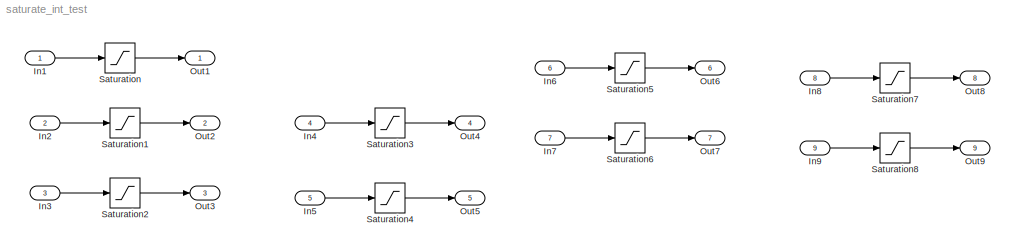
MODEL saturate_int_test
KIND model
BLOCK [Inport] In1
  IconDisplay = Port number
  OutDataTypeStr = double
  SID = 1
BLOCK [Inport] In2
  IconDisplay = Port number
  OutDataTypeStr = double
  Port = 2
  PortDimensions = 3
  SID = 2
BLOCK [Inport] In3
  IconDisplay = Port number
  OutDataTypeStr = double
  Port = 3
  PortDimensions = [2 3]
  SID = 3
BLOCK [Inport] In4
  IconDisplay = Port number
  OutDataTypeStr = double
  Port = 4
  PortDimensions = 3
  SID = 4
BLOCK [Inport] In5
  IconDisplay = Port number
  OutDataTypeStr = double
  Port = 5
  PortDimensions = [2 3]
  SID = 5
BLOCK [Inport] In6
  IconDisplay = Port number
  OutDataTypeStr = double
  Port = 6
  SID = 6
BLOCK [Inport] In7
  IconDisplay = Port number
  OutDataTypeStr = double
  Port = 7
  SID = 7
BLOCK [Inport] In8
  IconDisplay = Port number
  OutDataTypeStr = double
  Port = 8
  SID = 8
BLOCK [Inport] In9
  IconDisplay = Port number
  OutDataTypeStr = double
  Port = 9
  SID = 9
BLOCK [Outport] Out1
  IconDisplay = Port number
  SID = 19
BLOCK [Outport] Out2
  IconDisplay = Port number
  Port = 2
  SID = 20
BLOCK [Outport] Out3
  IconDisplay = Port number
  Port = 3
  SID = 21
BLOCK [Outport] Out4
  IconDisplay = Port number
  Port = 4
  SID = 22
BLOCK [Outport] Out5
  IconDisplay = Port number
  Port = 5
  SID = 23
BLOCK [Outport] Out6
  IconDisplay = Port number
  Port = 6
  SID = 24
BLOCK [Outport] Out7
  IconDisplay = Port number
  Port = 7
  SID = 25
BLOCK [Outport] Out8
  IconDisplay = Port number
  Port = 8
  SID = 26
BLOCK [Outport] Out9
  IconDisplay = Port number
  Port = 9
  SID = 27
BLOCK [Saturate] Saturation
  InputPortMap = u0
  Ports = [1, 1]
  SID = 10
  UpperLimit = 0.6
BLOCK [Saturate] Saturation1
  InputPortMap = u0
  Ports = [1, 1]
  RndMeth = Ceiling
  SID = 11
  UpperLimit = 0.4
BLOCK [Saturate] Saturation2
  InputPortMap = u0
  Ports = [1, 1]
  RndMeth = Nearest
  SID = 12
  UpperLimit = 0.6
BLOCK [Saturate] Saturation3
  InputPortMap = u0
  LowerLimit = [-0.5 -0.6 -0.7]
  Ports = [1, 1]
  RndMeth = Zero
  SID = 13
  UpperLimit = [0.4 0.6 0.7]
BLOCK [Saturate] Saturation4
  InputPortMap = u0
  LowerLimit = [-0.5 -0.6 -0.7; -1.5 -1.6 -1.7]
  Ports = [1, 1]
  RndMeth = Zero
  SID = 14
  UpperLimit = [0.5 0.6 0.7; 1.5 1.6 1.7]
BLOCK [Saturate] Saturation5
  InputPortMap = u0
  LowerLimit = [-2 -3 -4]
  Ports = [1, 1]
  SID = 15
  UpperLimit = [2 3 4]
BLOCK [Saturate] Saturation6
  InputPortMap = u0
  LowerLimit = [-2 -3 -4; -5 -6 -7]
  Ports = [1, 1]
  SID = 16
  UpperLimit = [2 3 4; 5 6 7]
BLOCK [Saturate] Saturation7
  InputPortMap = u0
  LowerLimit = [-2 -3 -4]
  Ports = [1, 1]
  SID = 17
  UpperLimit = 2
BLOCK [Saturate] Saturation8
  InputPortMap = u0
  LowerLimit = -2
  Ports = [1, 1]
  SID = 18
  UpperLimit = [2 3 4; 5 6 7]
LINE In1:1 -> Saturation:1
LINE In2:1 -> Saturation1:1
LINE In3:1 -> Saturation2:1
LINE In4:1 -> Saturation3:1
LINE In5:1 -> Saturation4:1
LINE In6:1 -> Saturation5:1
LINE In7:1 -> Saturation6:1
LINE In8:1 -> Saturation7:1
LINE In9:1 -> Saturation8:1
LINE Saturation1:1 -> Out2:1
LINE Saturation2:1 -> Out3:1
LINE Saturation3:1 -> Out4:1
LINE Saturation4:1 -> Out5:1
LINE Saturation5:1 -> Out6:1
LINE Saturation6:1 -> Out7:1
LINE Saturation7:1 -> Out8:1
LINE Saturation8:1 -> Out9:1
LINE Saturation:1 -> Out1:1
